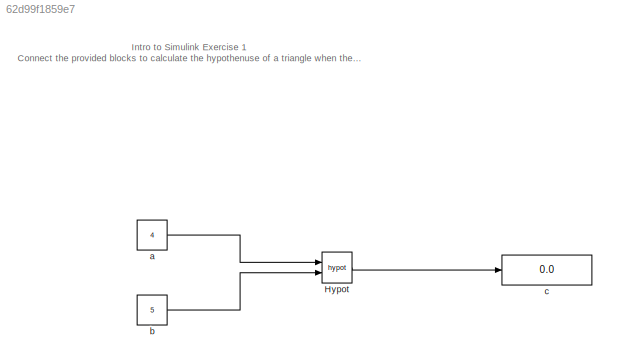
MODEL slx_62d99f1859e7
KIND model
CONFIG AbsTol = auto
CONFIG EnableMultiTasking = off
CONFIG FixedStep = auto
CONFIG MaxStep = auto
CONFIG MinStep = auto
CONFIG RelTol = 1e-3
CONFIG SampleTimeConstraint = Unconstrained
CONFIG Solver = VariableStepAuto
CONFIG SolverName = VariableStepAuto
CONFIG StartTime = 0.0
CONFIG StopTime = 10.0
BLOCK [Math] Hypot
  Operator = hypot
  Ports = [2, 1]
BLOCK [Constant] a
  Value = 4
BLOCK [Constant] b
  Value = 5
BLOCK [Display] c
  Decimation = 1
  Ports = [1]
ANNOTATION (root): Intro to Simulink Exercise 1 Connect the provided blocks to calculate the hypothenuse of a triangle when the length of its sides correspond to "a" and "b"
LINE Hypot:1 -> c:1
LINE a:1 -> Hypot:1
LINE b:1 -> Hypot:2
